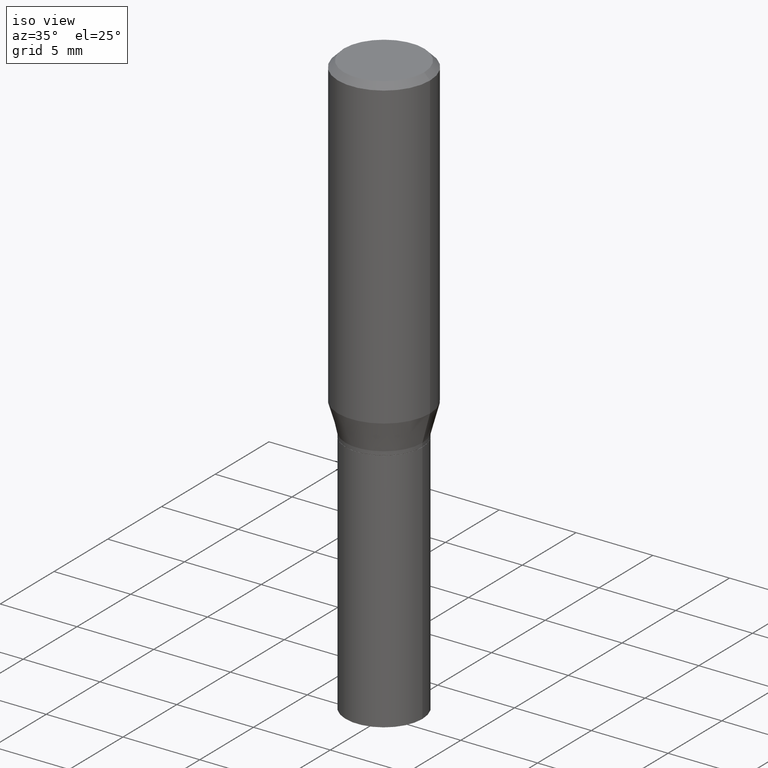
[diagram: clean part render]
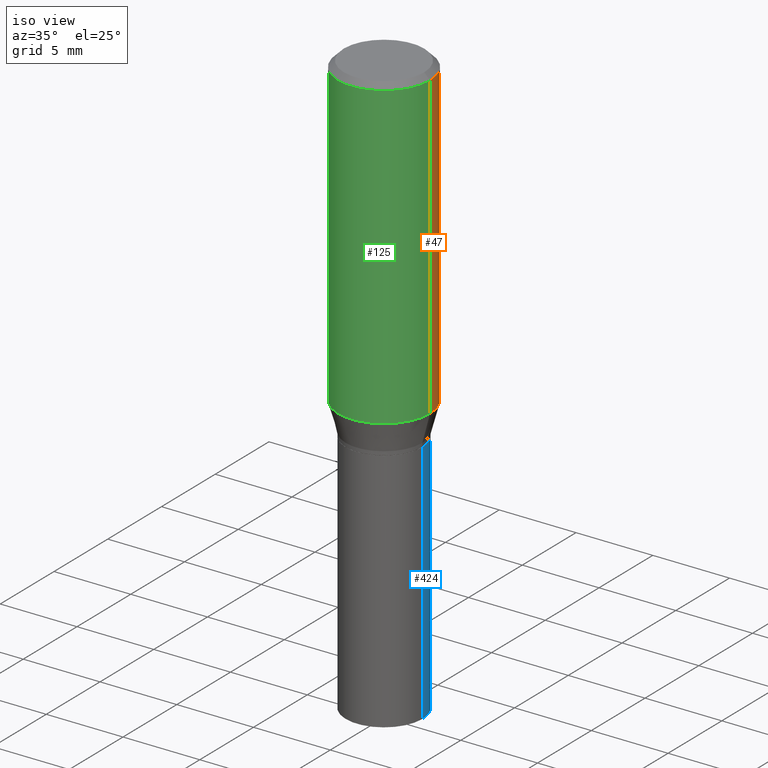
[diagram: same view with three faces highlighted in distinct colors, each labeled with its STEP entity id]
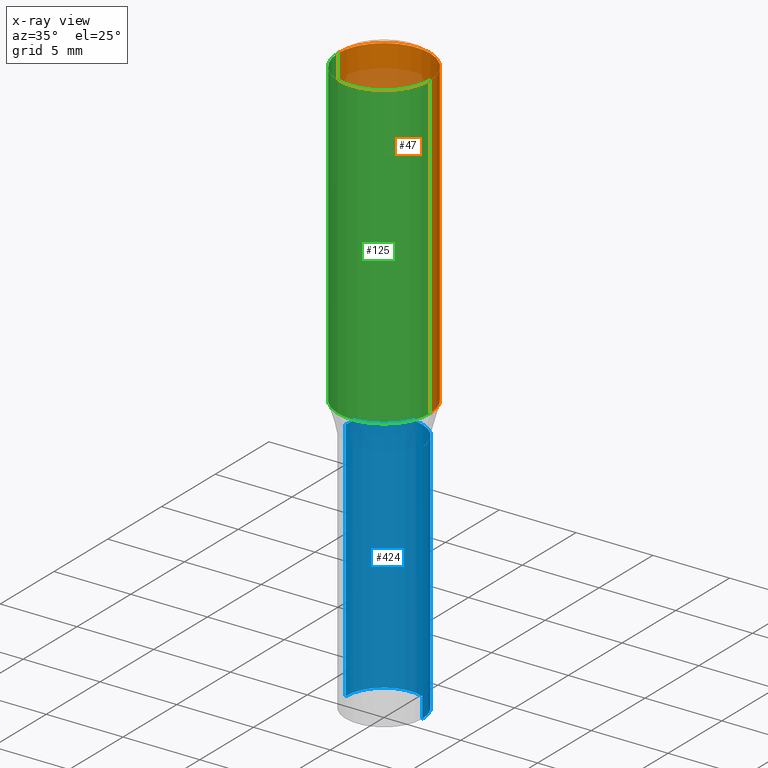
[diagram: x-ray of the same camera — body ghosted, the three highlighted faces saturated]
A machine part, iso view with three faces highlighted in distinct colors.
The next image is the same camera in x-ray (body ghosted, the three faces saturated) — at least one of them is partly hidden behind the body in this view.
Their STEP definitions:

[orange] entity #47 — the highlighted cylindrical surface (partial cylindrical patch) has radius 2.9997 mm, axis along (-0, 0, 1).
#8 = CARTESIAN_POINT ( 'NONE',  ( 3.668203209277705088E-31, -5.237222008264718399E-17, -0.01499999999999999944 ) ) ;
#15 = VERTEX_POINT ( 'NONE', #115 ) ;
#21 = EDGE_CURVE ( 'NONE', #366, #246, #64, .T. ) ;
#41 = CARTESIAN_POINT ( 'NONE',  ( 1.924009758381236534E-29, -2.746976019546752715E-15, -0.7867652016312725038 ) ) ;
#47 = ADVANCED_FACE ( 'NONE', ( #194 ), #375, .T. ) ;
#64 = CIRCLE ( 'NONE', #311, 0.1180999999999999966 ) ;
#68 = CARTESIAN_POINT ( 'NONE',  ( -0.1180999999999999966, -1.907825048614074518E-15, -0.7867652016312725038 ) ) ;
#72 = EDGE_CURVE ( 'NONE', #15, #366, #338, .T. ) ;
#84 = DIRECTION ( 'NONE',  ( -2.445468806185136597E-29, 3.491481338843145583E-15, 1.000000000000000000 ) ) ;
#87 = DIRECTION ( 'NONE',  ( 1.000000000000000000, -6.982962677686269077E-15, 0.000000000000000000 ) ) ;
#115 = CARTESIAN_POINT ( 'NONE',  ( 0.1180999999999999966, -3.571663911781501372E-15, -0.7867652016312725038 ) ) ;
#148 = ORIENTED_EDGE ( 'NONE', *, *, #72, .F. ) ;
#160 = CARTESIAN_POINT ( 'NONE',  ( 0.1180999999999999966, -8.246878922347480654E-16, 5.758764772215000440E-30 ) ) ;
#170 = VECTOR ( 'NONE', #306, 39.37007874015748143 ) ;
#172 = CIRCLE ( 'NONE', #199, 0.1180999999999999966 ) ;
#189 = EDGE_CURVE ( 'NONE', #398, #246, #242, .T. ) ;
#194 = FACE_OUTER_BOUND ( 'NONE', #296, .T. ) ;
#199 = AXIS2_PLACEMENT_3D ( 'NONE', #41, #305, #87 ) ;
#220 = ORIENTED_EDGE ( 'NONE', *, *, #21, .F. ) ;
#221 = DIRECTION ( 'NONE',  ( -2.445468806185136597E-29, 3.491481338843145583E-15, 1.000000000000000000 ) ) ;
#239 = AXIS2_PLACEMENT_3D ( 'NONE', #262, #84, #406 ) ;
#242 = LINE ( 'NONE', #353, #282 ) ;
#246 = VERTEX_POINT ( 'NONE', #460 ) ;
#262 = CARTESIAN_POINT ( 'NONE',  ( 0.000000000000000000, 0.000000000000000000, 0.000000000000000000 ) ) ;
#264 = DIRECTION ( 'NONE',  ( 1.000000000000000000, -6.982962677686266711E-15, 0.000000000000000000 ) ) ;
#282 = VECTOR ( 'NONE', #458, 39.37007874015748143 ) ;
#296 = EDGE_LOOP ( 'NONE', ( #391, #445, #220, #148 ) ) ;
#305 = DIRECTION ( 'NONE',  ( -2.445468806185136597E-29, 3.491481338843145583E-15, 1.000000000000000000 ) ) ;
#306 = DIRECTION ( 'NONE',  ( -2.445468806185136877E-29, 3.491481338843145188E-15, 1.000000000000000000 ) ) ;
#311 = AXIS2_PLACEMENT_3D ( 'NONE', #8, #221, #264 ) ;
#338 = LINE ( 'NONE', #160, #170 ) ;
#353 = CARTESIAN_POINT ( 'NONE',  ( -0.1180999999999999966, 8.391509709326782957E-16, -5.809262341591043784E-30 ) ) ;
#360 = CARTESIAN_POINT ( 'NONE',  ( 0.1180999999999999966, -8.770601123173952432E-16, -0.01499999999999999944 ) ) ;
#366 = VERTEX_POINT ( 'NONE', #360 ) ;
#375 = CYLINDRICAL_SURFACE ( 'NONE', #239, 0.1180999999999999966 ) ;
#391 = ORIENTED_EDGE ( 'NONE', *, *, #409, .T. ) ;
#398 = VERTEX_POINT ( 'NONE', #68 ) ;
#406 = DIRECTION ( 'NONE',  ( 1.000000000000000000, -6.982962677686266711E-15, 4.876176775795936353E-29 ) ) ;
#409 = EDGE_CURVE ( 'NONE', #15, #398, #172, .T. ) ;
#445 = ORIENTED_EDGE ( 'NONE', *, *, #189, .T. ) ;
#458 = DIRECTION ( 'NONE',  ( -2.445468806185136877E-29, 3.491481338843145188E-15, 1.000000000000000000 ) ) ;
#460 = CARTESIAN_POINT ( 'NONE',  ( -0.1180999999999999966, -5.605231488820216014E-16, -0.01499999999999999944 ) ) ;

[blue] entity #424 — the highlighted cylindrical surface (partial cylindrical patch) has radius 2.5006 mm, axis along (-0, 0, 1).
#2 = VERTEX_POINT ( 'NONE', #284 ) ;
#12 = DIRECTION ( 'NONE',  ( -2.445468806185136597E-29, 3.491481338843145583E-15, 1.000000000000000000 ) ) ;
#14 = CARTESIAN_POINT ( 'NONE',  ( -0.09844999999999999585, -3.438050637240251581E-15, -1.500000000000000222 ) ) ;
#24 = VECTOR ( 'NONE', #139, 39.37007874015748143 ) ;
#39 = AXIS2_PLACEMENT_3D ( 'NONE', #190, #12, #405 ) ;
#53 = LINE ( 'NONE', #202, #359 ) ;
#54 = DIRECTION ( 'NONE',  ( 1.000000000000000000, -6.982962677686266711E-15, 4.876176775795936353E-29 ) ) ;
#55 = VERTEX_POINT ( 'NONE', #14 ) ;
#70 = EDGE_CURVE ( 'NONE', #137, #2, #117, .T. ) ;
#96 = CARTESIAN_POINT ( 'NONE',  ( 3.668203209277704895E-29, -5.237222008264718177E-15, -1.500000000000000222 ) ) ;
#98 = LINE ( 'NONE', #176, #24 ) ;
#101 = CYLINDRICAL_SURFACE ( 'NONE', #308, 0.09844999999999999585 ) ;
#117 = CIRCLE ( 'NONE', #39, 0.09844999999999999585 ) ;
#129 = CIRCLE ( 'NONE', #407, 0.09844999999999999585 ) ;
#137 = VERTEX_POINT ( 'NONE', #350 ) ;
#139 = DIRECTION ( 'NONE',  ( -2.445468806185136877E-29, 3.491481338843145188E-15, 1.000000000000000000 ) ) ;
#164 = EDGE_CURVE ( 'NONE', #259, #137, #53, .T. ) ;
#166 = ORIENTED_EDGE ( 'NONE', *, *, #164, .F. ) ;
#176 = CARTESIAN_POINT ( 'NONE',  ( -0.09844999999999999585, 6.995293233558186035E-16, -4.842691596355954042E-30 ) ) ;
#190 = CARTESIAN_POINT ( 'NONE',  ( 2.127802408261687534E-29, -3.037937912927421601E-15, -0.8701000000000000956 ) ) ;
#202 = CARTESIAN_POINT ( 'NONE',  ( 0.09844999999999999585, -6.874726756182129545E-16, 4.800596035771099214E-30 ) ) ;
#207 = DIRECTION ( 'NONE',  ( -2.445468806185136597E-29, 3.491481338843145583E-15, 1.000000000000000000 ) ) ;
#208 = CARTESIAN_POINT ( 'NONE',  ( 0.000000000000000000, 0.000000000000000000, 0.000000000000000000 ) ) ;
#228 = FACE_OUTER_BOUND ( 'NONE', #249, .T. ) ;
#249 = EDGE_LOOP ( 'NONE', ( #291, #397, #364, #166 ) ) ;
#259 = VERTEX_POINT ( 'NONE', #385 ) ;
#284 = CARTESIAN_POINT ( 'NONE',  ( -0.09844999999999999585, -3.438050637240251581E-15, -0.8701000000000000956 ) ) ;
#289 = EDGE_CURVE ( 'NONE', #259, #55, #129, .T. ) ;
#291 = ORIENTED_EDGE ( 'NONE', *, *, #289, .T. ) ;
#308 = AXIS2_PLACEMENT_3D ( 'NONE', #208, #380, #54 ) ;
#314 = EDGE_CURVE ( 'NONE', #55, #2, #98, .T. ) ;
#349 = DIRECTION ( 'NONE',  ( -2.445468806185136877E-29, 3.491481338843145188E-15, 1.000000000000000000 ) ) ;
#350 = CARTESIAN_POINT ( 'NONE',  ( 0.09844999999999999585, -3.725410588545634555E-15, -0.8701000000000000956 ) ) ;
#356 = DIRECTION ( 'NONE',  ( 1.000000000000000000, -6.982962677686265922E-15, 0.000000000000000000 ) ) ;
#359 = VECTOR ( 'NONE', #349, 39.37007874015748143 ) ;
#364 = ORIENTED_EDGE ( 'NONE', *, *, #70, .F. ) ;
#380 = DIRECTION ( 'NONE',  ( -2.445468806185136597E-29, 3.491481338843145583E-15, 1.000000000000000000 ) ) ;
#385 = CARTESIAN_POINT ( 'NONE',  ( 0.09844999999999999585, -5.924694683882931526E-15, -1.500000000000000222 ) ) ;
#397 = ORIENTED_EDGE ( 'NONE', *, *, #314, .T. ) ;
#405 = DIRECTION ( 'NONE',  ( 1.000000000000000000, -6.982962677686265922E-15, 0.000000000000000000 ) ) ;
#407 = AXIS2_PLACEMENT_3D ( 'NONE', #96, #207, #356 ) ;
#424 = ADVANCED_FACE ( 'NONE', ( #228 ), #101, .T. ) ;

[green] entity #125 — the highlighted cylindrical surface (partial cylindrical patch) has radius 2.9997 mm, axis along (-0, 0, 1).
#15 = VERTEX_POINT ( 'NONE', #115 ) ;
#63 = ORIENTED_EDGE ( 'NONE', *, *, #72, .T. ) ;
#68 = CARTESIAN_POINT ( 'NONE',  ( -0.1180999999999999966, -1.907825048614074518E-15, -0.7867652016312725038 ) ) ;
#72 = EDGE_CURVE ( 'NONE', #15, #366, #338, .T. ) ;
#86 = FACE_OUTER_BOUND ( 'NONE', #182, .T. ) ;
#115 = CARTESIAN_POINT ( 'NONE',  ( 0.1180999999999999966, -3.571663911781501372E-15, -0.7867652016312725038 ) ) ;
#120 = DIRECTION ( 'NONE',  ( 1.000000000000000000, -6.982962677686266711E-15, 4.876176775795936353E-29 ) ) ;
#125 = ADVANCED_FACE ( 'NONE', ( #86 ), #392, .T. ) ;
#126 = EDGE_CURVE ( 'NONE', #246, #366, #384, .T. ) ;
#127 = CARTESIAN_POINT ( 'NONE',  ( 3.668203209277705088E-31, -5.237222008264718399E-17, -0.01499999999999999944 ) ) ;
#155 = ORIENTED_EDGE ( 'NONE', *, *, #189, .F. ) ;
#160 = CARTESIAN_POINT ( 'NONE',  ( 0.1180999999999999966, -8.246878922347480654E-16, 5.758764772215000440E-30 ) ) ;
#170 = VECTOR ( 'NONE', #306, 39.37007874015748143 ) ;
#179 = CARTESIAN_POINT ( 'NONE',  ( 0.000000000000000000, 0.000000000000000000, 0.000000000000000000 ) ) ;
#182 = EDGE_LOOP ( 'NONE', ( #155, #213, #63, #332 ) ) ;
#189 = EDGE_CURVE ( 'NONE', #398, #246, #242, .T. ) ;
#213 = ORIENTED_EDGE ( 'NONE', *, *, #370, .T. ) ;
#242 = LINE ( 'NONE', #353, #282 ) ;
#246 = VERTEX_POINT ( 'NONE', #460 ) ;
#282 = VECTOR ( 'NONE', #458, 39.37007874015748143 ) ;
#292 = CARTESIAN_POINT ( 'NONE',  ( 1.924009758381236534E-29, -2.746976019546752715E-15, -0.7867652016312725038 ) ) ;
#306 = DIRECTION ( 'NONE',  ( -2.445468806185136877E-29, 3.491481338843145188E-15, 1.000000000000000000 ) ) ;
#316 = CIRCLE ( 'NONE', #361, 0.1180999999999999966 ) ;
#332 = ORIENTED_EDGE ( 'NONE', *, *, #126, .F. ) ;
#338 = LINE ( 'NONE', #160, #170 ) ;
#343 = DIRECTION ( 'NONE',  ( 1.000000000000000000, -6.982962677686266711E-15, 0.000000000000000000 ) ) ;
#353 = CARTESIAN_POINT ( 'NONE',  ( -0.1180999999999999966, 8.391509709326782957E-16, -5.809262341591043784E-30 ) ) ;
#360 = CARTESIAN_POINT ( 'NONE',  ( 0.1180999999999999966, -8.770601123173952432E-16, -0.01499999999999999944 ) ) ;
#361 = AXIS2_PLACEMENT_3D ( 'NONE', #292, #429, #457 ) ;
#366 = VERTEX_POINT ( 'NONE', #360 ) ;
#370 = EDGE_CURVE ( 'NONE', #398, #15, #316, .T. ) ;
#371 = AXIS2_PLACEMENT_3D ( 'NONE', #179, #446, #120 ) ;
#384 = CIRCLE ( 'NONE', #447, 0.1180999999999999966 ) ;
#392 = CYLINDRICAL_SURFACE ( 'NONE', #371, 0.1180999999999999966 ) ;
#398 = VERTEX_POINT ( 'NONE', #68 ) ;
#429 = DIRECTION ( 'NONE',  ( -2.445468806185136597E-29, 3.491481338843145583E-15, 1.000000000000000000 ) ) ;
#446 = DIRECTION ( 'NONE',  ( -2.445468806185136597E-29, 3.491481338843145583E-15, 1.000000000000000000 ) ) ;
#447 = AXIS2_PLACEMENT_3D ( 'NONE', #127, #449, #343 ) ;
#449 = DIRECTION ( 'NONE',  ( -2.445468806185136597E-29, 3.491481338843145583E-15, 1.000000000000000000 ) ) ;
#457 = DIRECTION ( 'NONE',  ( 1.000000000000000000, -6.982962677686269077E-15, 0.000000000000000000 ) ) ;
#458 = DIRECTION ( 'NONE',  ( -2.445468806185136877E-29, 3.491481338843145188E-15, 1.000000000000000000 ) ) ;
#460 = CARTESIAN_POINT ( 'NONE',  ( -0.1180999999999999966, -5.605231488820216014E-16, -0.01499999999999999944 ) ) ;